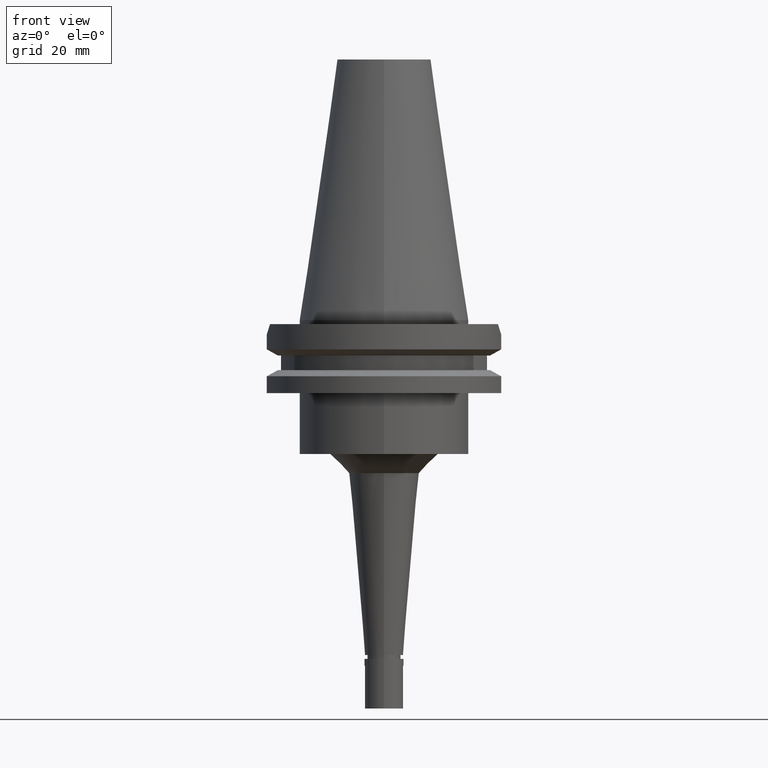
[diagram: clean part render]
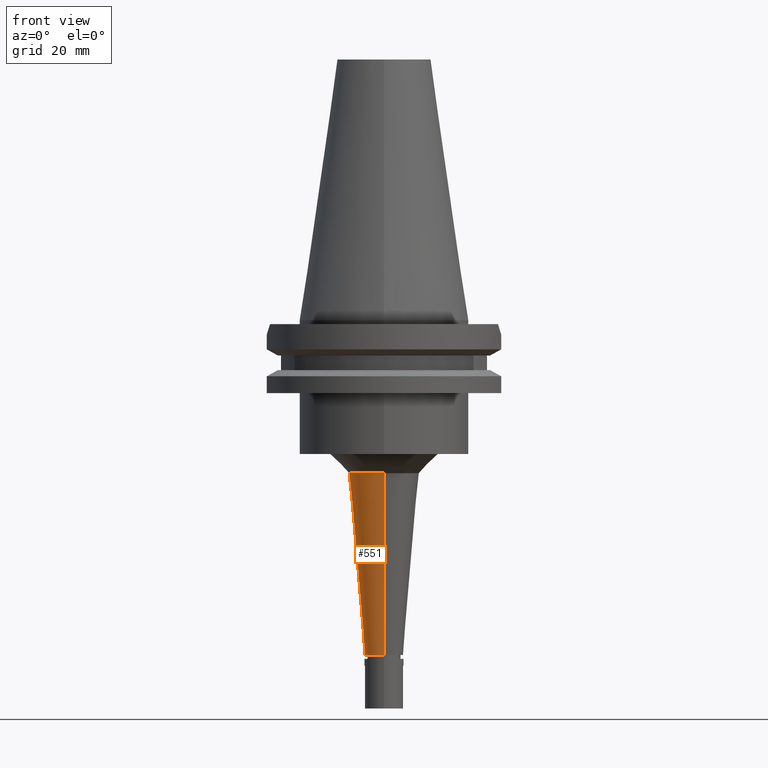
[diagram: same view with one face highlighted and labeled with its STEP entity id]
A machine part, front view. The second image highlights one B-rep face of the part: STEP entity #551.
In plain terms, the highlighted conical surface has half-angle 5 deg.
Its self-contained STEP definition (entity closure, byte-faithful):
#42 = CIRCLE ( 'NONE', #1173, 5.000000000000000000 ) ;
#81 = EDGE_CURVE ( 'NONE', #1926, #2963, #2633, .T. ) ;
#88 = LINE ( 'NONE', #1597, #1654 ) ;
#180 = DIRECTION ( 'NONE',  ( 0.0000000000000000000, 0.0000000000000000000, 1.000000000000000000 ) ) ;
#214 = AXIS2_PLACEMENT_3D ( 'NONE', #1266, #1002, #1779 ) ;
#221 = CARTESIAN_POINT ( 'NONE',  ( 0.0000000000000000000, 5.000000000000000000, -87.59999999999999432 ) ) ;
#338 = CARTESIAN_POINT ( 'NONE',  ( 0.0000000000000000000, 9.164460383832999213, -40.00000000000000000 ) ) ;
#339 = DIRECTION ( 'NONE',  ( 0.0000000000000000000, -1.000000000000000000, 0.0000000000000000000 ) ) ;
#518 = CONICAL_SURFACE ( 'NONE', #214, 7.082230191917000539, 0.08726646259969973729 ) ;
#551 = ADVANCED_FACE ( 'NONE', ( #1283 ), #518, .T. ) ;
#573 = DIRECTION ( 'NONE',  ( 0.0000000000000000000, 0.0000000000000000000, -1.000000000000000000 ) ) ;
#704 = CARTESIAN_POINT ( 'NONE',  ( 0.0000000000000000000, -9.164460383832999213, -40.00000000000000000 ) ) ;
#866 = LINE ( 'NONE', #2400, #2627 ) ;
#1002 = DIRECTION ( 'NONE',  ( 0.0000000000000000000, 0.0000000000000000000, 1.000000000000000000 ) ) ;
#1078 = ORIENTED_EDGE ( 'NONE', *, *, #81, .T. ) ;
#1173 = AXIS2_PLACEMENT_3D ( 'NONE', #1397, #180, #2383 ) ;
#1226 = AXIS2_PLACEMENT_3D ( 'NONE', #2818, #573, #339 ) ;
#1266 = CARTESIAN_POINT ( 'NONE',  ( 0.0000000000000000000, 0.0000000000000000000, -63.79999999999999716 ) ) ;
#1283 = FACE_OUTER_BOUND ( 'NONE', #2942, .T. ) ;
#1358 = EDGE_CURVE ( 'NONE', #2963, #2569, #866, .T. ) ;
#1397 = CARTESIAN_POINT ( 'NONE',  ( 0.0000000000000000000, 0.0000000000000000000, -87.59999999999999432 ) ) ;
#1400 = EDGE_CURVE ( 'NONE', #2569, #1873, #42, .T. ) ;
#1597 = CARTESIAN_POINT ( 'NONE',  ( 0.0000000000000000000, -9.164460383832999213, -40.00000000000000000 ) ) ;
#1654 = VECTOR ( 'NONE', #1802, 1000.000000000000114 ) ;
#1779 = DIRECTION ( 'NONE',  ( 0.0000000000000000000, 1.000000000000000000, 0.0000000000000000000 ) ) ;
#1802 = DIRECTION ( 'NONE',  ( 0.0000000000000000000, 0.08715574274764407992, -0.9961946980917467664 ) ) ;
#1873 = VERTEX_POINT ( 'NONE', #2136 ) ;
#1926 = VERTEX_POINT ( 'NONE', #704 ) ;
#2136 = CARTESIAN_POINT ( 'NONE',  ( 0.0000000000000000000, -5.000000000000000000, -87.59999999999999432 ) ) ;
#2160 = ORIENTED_EDGE ( 'NONE', *, *, #1400, .T. ) ;
#2363 = EDGE_CURVE ( 'NONE', #1926, #1873, #88, .T. ) ;
#2383 = DIRECTION ( 'NONE',  ( 0.0000000000000000000, 1.000000000000000000, 0.0000000000000000000 ) ) ;
#2400 = CARTESIAN_POINT ( 'NONE',  ( 0.0000000000000000000, 9.164460383832999213, -40.00000000000000000 ) ) ;
#2417 = DIRECTION ( 'NONE',  ( 0.0000000000000000000, -0.08715574274764407992, -0.9961946980917467664 ) ) ;
#2569 = VERTEX_POINT ( 'NONE', #221 ) ;
#2627 = VECTOR ( 'NONE', #2417, 1000.000000000000114 ) ;
#2633 = CIRCLE ( 'NONE', #1226, 9.164460383832000900 ) ;
#2818 = CARTESIAN_POINT ( 'NONE',  ( 0.0000000000000000000, 0.0000000000000000000, -40.00000000000000000 ) ) ;
#2942 = EDGE_LOOP ( 'NONE', ( #2160, #3157, #1078, #2999 ) ) ;
#2963 = VERTEX_POINT ( 'NONE', #338 ) ;
#2999 = ORIENTED_EDGE ( 'NONE', *, *, #1358, .T. ) ;
#3157 = ORIENTED_EDGE ( 'NONE', *, *, #2363, .F. ) ;